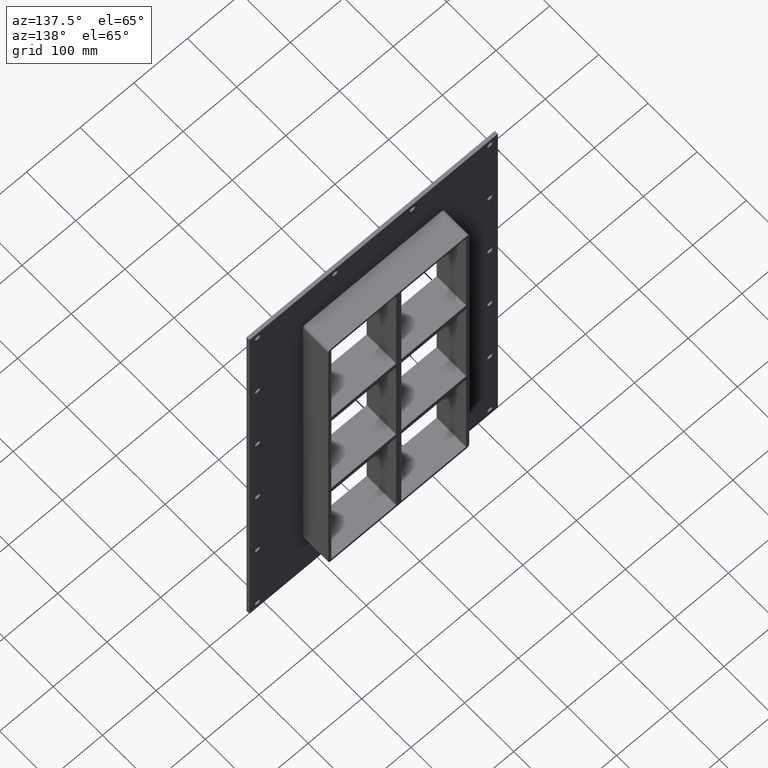
[diagram: clean part render]
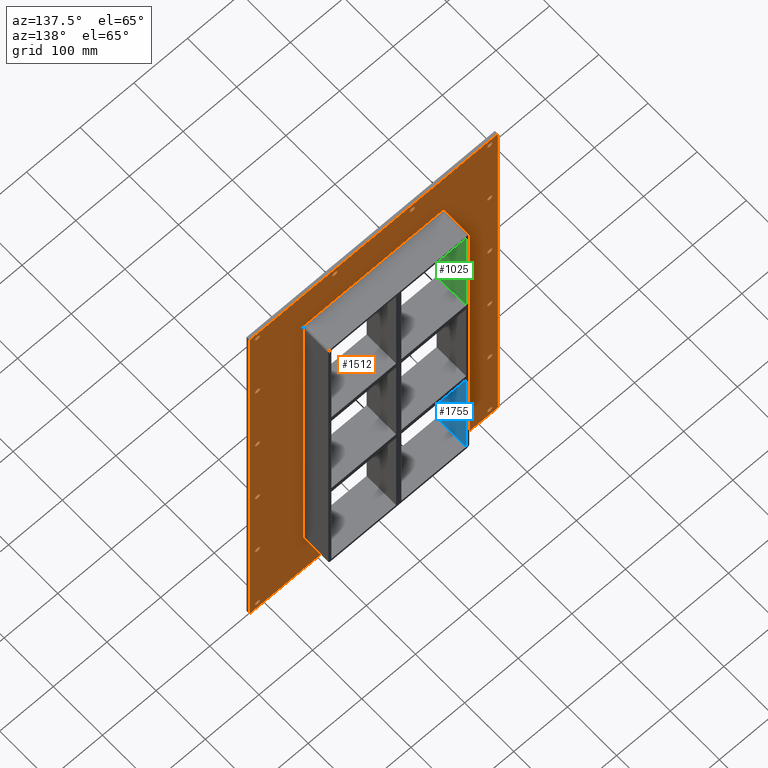
[diagram: same view with three faces highlighted in distinct colors, each labeled with its STEP entity id]
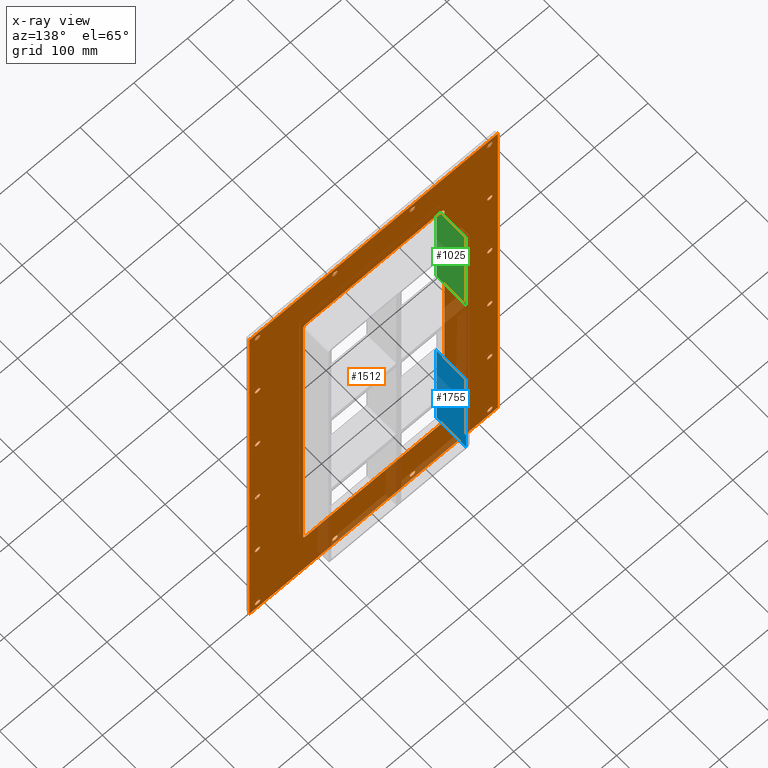
[diagram: x-ray of the same camera — body ghosted, the three highlighted faces saturated]
A machine part, auxiliary view with three faces highlighted in distinct colors.
The next image is the same camera in x-ray (body ghosted, the three faces saturated) — at least one of them is partly hidden behind the body in this view.
Their STEP definitions:

[orange] entity #1512 — the highlighted planar face has unit normal (0, 1, 0).
#73=CARTESIAN_POINT('',(-221.50000000000006,5.999999999999943,-430.00000000000011));
#74=VERTEX_POINT('',#73);
#75=CARTESIAN_POINT('',(-216.50000000000006,5.999999999999943,-430.00000000000011));
#76=DIRECTION('',(0.0,-1.0,0.0));
#77=DIRECTION('',(1.0,0.0,0.0));
#78=AXIS2_PLACEMENT_3D('',#75,#76,#77);
#79=CIRCLE('',#78,5.0);
#80=EDGE_CURVE('',#74,#74,#79,.T.);
#101=CARTESIAN_POINT('',(211.40000000000001,5.999999999999943,-258.00000000000006));
#102=VERTEX_POINT('',#101);
#103=CARTESIAN_POINT('',(216.40000000000001,5.999999999999943,-258.00000000000006));
#104=DIRECTION('',(0.0,-1.0,0.0));
#105=DIRECTION('',(1.0,0.0,0.0));
#106=AXIS2_PLACEMENT_3D('',#103,#104,#105);
#107=CIRCLE('',#106,5.0);
#108=EDGE_CURVE('',#102,#102,#107,.T.);
#129=CARTESIAN_POINT('',(-221.50000000000006,5.999999999999943,-258.00000000000006));
#130=VERTEX_POINT('',#129);
#131=CARTESIAN_POINT('',(-216.50000000000006,5.999999999999943,-258.00000000000006));
#132=DIRECTION('',(0.0,-1.0,0.0));
#133=DIRECTION('',(1.0,0.0,0.0));
#134=AXIS2_PLACEMENT_3D('',#131,#132,#133);
#135=CIRCLE('',#134,5.0);
#136=EDGE_CURVE('',#130,#130,#135,.T.);
#157=CARTESIAN_POINT('',(211.40000000000001,5.999999999999943,-86.000000000000057));
#158=VERTEX_POINT('',#157);
#159=CARTESIAN_POINT('',(216.40000000000001,5.999999999999943,-86.000000000000057));
#160=DIRECTION('',(0.0,-1.0,0.0));
#161=DIRECTION('',(1.0,0.0,0.0));
#162=AXIS2_PLACEMENT_3D('',#159,#160,#161);
#163=CIRCLE('',#162,5.0);
#164=EDGE_CURVE('',#158,#158,#163,.T.);
#185=CARTESIAN_POINT('',(-221.50000000000006,5.999999999999943,-86.000000000000057));
#186=VERTEX_POINT('',#185);
#187=CARTESIAN_POINT('',(-216.50000000000006,5.999999999999943,-86.000000000000057));
#188=DIRECTION('',(0.0,-1.0,0.0));
#189=DIRECTION('',(1.0,0.0,0.0));
#190=AXIS2_PLACEMENT_3D('',#187,#188,#189);
#191=CIRCLE('',#190,5.0);
#192=EDGE_CURVE('',#186,#186,#191,.T.);
#213=CARTESIAN_POINT('',(211.40000000000001,5.999999999999943,85.999999999999872));
#214=VERTEX_POINT('',#213);
#215=CARTESIAN_POINT('',(216.40000000000001,5.999999999999943,85.999999999999872));
#216=DIRECTION('',(0.0,-1.0,0.0));
#217=DIRECTION('',(1.0,0.0,0.0));
#218=AXIS2_PLACEMENT_3D('',#215,#216,#217);
#219=CIRCLE('',#218,5.0);
#220=EDGE_CURVE('',#214,#214,#219,.T.);
#241=CARTESIAN_POINT('',(-221.50000000000006,5.999999999999943,85.999999999999872));
#242=VERTEX_POINT('',#241);
#243=CARTESIAN_POINT('',(-216.50000000000006,5.999999999999943,85.999999999999872));
#244=DIRECTION('',(0.0,-1.0,0.0));
#245=DIRECTION('',(1.0,0.0,0.0));
#246=AXIS2_PLACEMENT_3D('',#243,#244,#245);
#247=CIRCLE('',#246,5.0);
#248=EDGE_CURVE('',#242,#242,#247,.T.);
#269=CARTESIAN_POINT('',(211.40000000000001,5.999999999999943,257.99999999999989));
#270=VERTEX_POINT('',#269);
#271=CARTESIAN_POINT('',(216.40000000000001,5.999999999999943,257.99999999999989));
#272=DIRECTION('',(0.0,-1.0,0.0));
#273=DIRECTION('',(1.0,0.0,0.0));
#274=AXIS2_PLACEMENT_3D('',#271,#272,#273);
#275=CIRCLE('',#274,5.0);
#276=EDGE_CURVE('',#270,#270,#275,.T.);
#297=CARTESIAN_POINT('',(-221.50000000000006,5.999999999999943,257.99999999999989));
#298=VERTEX_POINT('',#297);
#299=CARTESIAN_POINT('',(-216.50000000000006,5.999999999999943,257.99999999999989));
#300=DIRECTION('',(0.0,-1.0,0.0));
#301=DIRECTION('',(1.0,0.0,0.0));
#302=AXIS2_PLACEMENT_3D('',#299,#300,#301);
#303=CIRCLE('',#302,5.0);
#304=EDGE_CURVE('',#298,#298,#303,.T.);
#325=CARTESIAN_POINT('',(-77.200000000000017,5.999999999999943,429.99999999999989));
#326=VERTEX_POINT('',#325);
#327=CARTESIAN_POINT('',(-72.200000000000017,5.999999999999943,429.99999999999989));
#328=DIRECTION('',(0.0,-1.0,0.0));
#329=DIRECTION('',(1.0,0.0,0.0));
#330=AXIS2_PLACEMENT_3D('',#327,#328,#329);
#331=CIRCLE('',#330,5.0);
#332=EDGE_CURVE('',#326,#326,#331,.T.);
#353=CARTESIAN_POINT('',(-77.200000000000017,5.999999999999943,-430.00000000000011));
#354=VERTEX_POINT('',#353);
#355=CARTESIAN_POINT('',(-72.200000000000017,5.999999999999943,-430.00000000000011));
#356=DIRECTION('',(0.0,-1.0,0.0));
#357=DIRECTION('',(1.0,0.0,0.0));
#358=AXIS2_PLACEMENT_3D('',#355,#356,#357);
#359=CIRCLE('',#358,5.0);
#360=EDGE_CURVE('',#354,#354,#359,.T.);
#381=CARTESIAN_POINT('',(67.099999999999994,5.999999999999943,429.99999999999989));
#382=VERTEX_POINT('',#381);
#383=CARTESIAN_POINT('',(72.099999999999994,5.999999999999943,429.99999999999989));
#384=DIRECTION('',(0.0,-1.0,0.0));
#385=DIRECTION('',(1.0,0.0,0.0));
#386=AXIS2_PLACEMENT_3D('',#383,#384,#385);
#387=CIRCLE('',#386,5.0);
#388=EDGE_CURVE('',#382,#382,#387,.T.);
#409=CARTESIAN_POINT('',(67.099999999999994,5.999999999999943,-430.00000000000011));
#410=VERTEX_POINT('',#409);
#411=CARTESIAN_POINT('',(72.099999999999994,5.999999999999943,-430.00000000000011));
#412=DIRECTION('',(0.0,-1.0,0.0));
#413=DIRECTION('',(1.0,0.0,0.0));
#414=AXIS2_PLACEMENT_3D('',#411,#412,#413);
#415=CIRCLE('',#414,5.0);
#416=EDGE_CURVE('',#410,#410,#415,.T.);
#437=CARTESIAN_POINT('',(211.40000000000001,5.999999999999943,-430.00000000000011));
#438=VERTEX_POINT('',#437);
#439=CARTESIAN_POINT('',(216.40000000000001,5.999999999999943,-430.00000000000011));
#440=DIRECTION('',(0.0,-1.0,0.0));
#441=DIRECTION('',(1.0,0.0,0.0));
#442=AXIS2_PLACEMENT_3D('',#439,#440,#441);
#443=CIRCLE('',#442,5.0);
#444=EDGE_CURVE('',#438,#438,#443,.T.);
#465=CARTESIAN_POINT('',(-221.50000000000006,5.999999999999943,429.99999999999989));
#466=VERTEX_POINT('',#465);
#467=CARTESIAN_POINT('',(-216.50000000000006,5.999999999999943,429.99999999999989));
#468=DIRECTION('',(0.0,-1.0,0.0));
#469=DIRECTION('',(1.0,0.0,0.0));
#470=AXIS2_PLACEMENT_3D('',#467,#468,#469);
#471=CIRCLE('',#470,5.0);
#472=EDGE_CURVE('',#466,#466,#471,.T.);
#493=CARTESIAN_POINT('',(211.40000000000001,5.999999999999943,429.99999999999989));
#494=VERTEX_POINT('',#493);
#495=CARTESIAN_POINT('',(216.40000000000001,5.999999999999943,429.99999999999989));
#496=DIRECTION('',(0.0,-1.0,0.0));
#497=DIRECTION('',(1.0,0.0,0.0));
#498=AXIS2_PLACEMENT_3D('',#495,#496,#497);
#499=CIRCLE('',#498,5.0);
#500=EDGE_CURVE('',#494,#494,#499,.T.);
#1355=CARTESIAN_POINT('',(0.0,6.000000000000001,-2.520772E-014));
#1356=DIRECTION('',(0.0,1.0,0.0));
#1357=DIRECTION('',(0.0,0.0,1.0));
#1358=AXIS2_PLACEMENT_3D('',#1355,#1356,#1357);
#1359=PLANE('',#1358);
#1360=CARTESIAN_POINT('',(-231.5,6.000000000000001,445.00000000000006));
#1361=VERTEX_POINT('',#1360);
#1362=CARTESIAN_POINT('',(231.5,6.000000000000001,445.00000000000006));
#1363=VERTEX_POINT('',#1362);
#1364=CARTESIAN_POINT('',(-231.5,6.000000000000001,445.00000000000006));
#1365=DIRECTION('',(1.0,0.0,0.0));
#1366=VECTOR('',#1365,463.0);
#1367=LINE('',#1364,#1366);
#1368=EDGE_CURVE('',#1361,#1363,#1367,.T.);
#1369=ORIENTED_EDGE('',*,*,#1368,.T.);
#1370=CARTESIAN_POINT('',(231.5,6.000000000000001,-445.00000000000023));
#1371=VERTEX_POINT('',#1370);
#1372=CARTESIAN_POINT('',(231.5,6.000000000000001,445.00000000000006));
#1373=DIRECTION('',(0.0,0.0,-1.0));
#1374=VECTOR('',#1373,890.00000000000023);
#1375=LINE('',#1372,#1374);
#1376=EDGE_CURVE('',#1363,#1371,#1375,.T.);
#1377=ORIENTED_EDGE('',*,*,#1376,.T.);
#1378=CARTESIAN_POINT('',(-231.5,6.000000000000001,-445.00000000000023));
#1379=VERTEX_POINT('',#1378);
#1380=CARTESIAN_POINT('',(231.5,6.000000000000001,-445.00000000000011));
#1381=DIRECTION('',(-1.0,0.0,0.0));
#1382=VECTOR('',#1381,463.0);
#1383=LINE('',#1380,#1382);
#1384=EDGE_CURVE('',#1371,#1379,#1383,.T.);
#1385=ORIENTED_EDGE('',*,*,#1384,.T.);
#1386=CARTESIAN_POINT('',(-231.5,6.000000000000001,-445.00000000000011));
#1387=DIRECTION('',(0.0,0.0,1.0));
#1388=VECTOR('',#1387,890.00000000000023);
#1389=LINE('',#1386,#1388);
#1390=EDGE_CURVE('',#1379,#1361,#1389,.T.);
#1391=ORIENTED_EDGE('',*,*,#1390,.T.);
#1392=EDGE_LOOP('',(#1369,#1377,#1385,#1391));
#1393=FACE_OUTER_BOUND('',#1392,.T.);
#1394=ORIENTED_EDGE('',*,*,#80,.T.);
#1395=EDGE_LOOP('',(#1394));
#1396=FACE_BOUND('',#1395,.T.);
#1397=ORIENTED_EDGE('',*,*,#108,.T.);
#1398=EDGE_LOOP('',(#1397));
#1399=FACE_BOUND('',#1398,.T.);
#1400=ORIENTED_EDGE('',*,*,#136,.T.);
#1401=EDGE_LOOP('',(#1400));
#1402=FACE_BOUND('',#1401,.T.);
#1403=ORIENTED_EDGE('',*,*,#164,.T.);
#1404=EDGE_LOOP('',(#1403));
#1405=FACE_BOUND('',#1404,.T.);
#1406=ORIENTED_EDGE('',*,*,#192,.T.);
#1407=EDGE_LOOP('',(#1406));
#1408=FACE_BOUND('',#1407,.T.);
#1409=ORIENTED_EDGE('',*,*,#220,.T.);
#1410=EDGE_LOOP('',(#1409));
#1411=FACE_BOUND('',#1410,.T.);
#1412=ORIENTED_EDGE('',*,*,#248,.T.);
#1413=EDGE_LOOP('',(#1412));
#1414=FACE_BOUND('',#1413,.T.);
#1415=ORIENTED_EDGE('',*,*,#276,.T.);
#1416=EDGE_LOOP('',(#1415));
#1417=FACE_BOUND('',#1416,.T.);
#1418=ORIENTED_EDGE('',*,*,#304,.T.);
#1419=EDGE_LOOP('',(#1418));
#1420=FACE_BOUND('',#1419,.T.);
#1421=ORIENTED_EDGE('',*,*,#332,.T.);
#1422=EDGE_LOOP('',(#1421));
#1423=FACE_BOUND('',#1422,.T.);
#1424=ORIENTED_EDGE('',*,*,#360,.T.);
#1425=EDGE_LOOP('',(#1424));
#1426=FACE_BOUND('',#1425,.T.);
#1427=ORIENTED_EDGE('',*,*,#388,.T.);
#1428=EDGE_LOOP('',(#1427));
#1429=FACE_BOUND('',#1428,.T.);
#1430=ORIENTED_EDGE('',*,*,#416,.T.);
#1431=EDGE_LOOP('',(#1430));
#1432=FACE_BOUND('',#1431,.T.);
#1433=ORIENTED_EDGE('',*,*,#444,.T.);
#1434=EDGE_LOOP('',(#1433));
#1435=FACE_BOUND('',#1434,.T.);
#1436=ORIENTED_EDGE('',*,*,#472,.T.);
#1437=EDGE_LOOP('',(#1436));
#1438=FACE_BOUND('',#1437,.T.);
#1439=ORIENTED_EDGE('',*,*,#500,.T.);
#1440=EDGE_LOOP('',(#1439));
#1441=FACE_BOUND('',#1440,.T.);
#1442=CARTESIAN_POINT('',(-125.5,6.000000000000001,-345.00000000000011));
#1443=VERTEX_POINT('',#1442);
#1444=CARTESIAN_POINT('',(-131.5,6.000000000000001,-339.00000000000023));
#1445=VERTEX_POINT('',#1444);
#1446=CARTESIAN_POINT('',(-125.5,6.000000000000001,-339.00000000000023));
#1447=DIRECTION('',(0.0,1.0,0.0));
#1448=DIRECTION('',(-0.707106781186552,0.0,-0.707106781186543));
#1449=AXIS2_PLACEMENT_3D('',#1446,#1447,#1448);
#1450=CIRCLE('',#1449,6.000000000000001);
#1451=EDGE_CURVE('',#1443,#1445,#1450,.T.);
#1452=ORIENTED_EDGE('',*,*,#1451,.F.);
#1453=CARTESIAN_POINT('',(125.5,6.000000000000001,-345.00000000000011));
#1454=VERTEX_POINT('',#1453);
#1455=CARTESIAN_POINT('',(125.5,6.000000000000001,-345.00000000000011));
#1456=DIRECTION('',(-1.0,0.0,0.0));
#1457=VECTOR('',#1456,251.0);
#1458=LINE('',#1455,#1457);
#1459=EDGE_CURVE('',#1454,#1443,#1458,.T.);
#1460=ORIENTED_EDGE('',*,*,#1459,.F.);
#1461=CARTESIAN_POINT('',(131.5,6.000000000000001,-339.00000000000006));
#1462=VERTEX_POINT('',#1461);
#1463=CARTESIAN_POINT('',(125.5,6.000000000000001,-339.00000000000006));
#1464=DIRECTION('',(0.0,1.0,0.0));
#1465=DIRECTION('',(0.707106781186543,0.0,-0.707106781186552));
#1466=AXIS2_PLACEMENT_3D('',#1463,#1464,#1465);
#1467=CIRCLE('',#1466,6.0);
#1468=EDGE_CURVE('',#1462,#1454,#1467,.T.);
#1469=ORIENTED_EDGE('',*,*,#1468,.F.);
#1470=CARTESIAN_POINT('',(131.5,6.000000000000001,339.0));
#1471=VERTEX_POINT('',#1470);
#1472=CARTESIAN_POINT('',(131.5,6.000000000000001,339.0));
#1473=DIRECTION('',(0.0,0.0,-1.0));
#1474=VECTOR('',#1473,678.0);
#1475=LINE('',#1472,#1474);
#1476=EDGE_CURVE('',#1471,#1462,#1475,.T.);
#1477=ORIENTED_EDGE('',*,*,#1476,.F.);
#1478=CARTESIAN_POINT('',(125.5,6.000000000000001,345.0));
#1479=VERTEX_POINT('',#1478);
#1480=CARTESIAN_POINT('',(125.5,6.000000000000001,339.0));
#1481=DIRECTION('',(0.0,1.0,0.0));
#1482=DIRECTION('',(0.707106781186543,0.0,0.707106781186552));
#1483=AXIS2_PLACEMENT_3D('',#1480,#1481,#1482);
#1484=CIRCLE('',#1483,6.0);
#1485=EDGE_CURVE('',#1479,#1471,#1484,.T.);
#1486=ORIENTED_EDGE('',*,*,#1485,.F.);
#1487=CARTESIAN_POINT('',(-125.5,6.000000000000001,345.0));
#1488=VERTEX_POINT('',#1487);
#1489=CARTESIAN_POINT('',(-125.5,6.000000000000001,345.0));
#1490=DIRECTION('',(1.0,0.0,0.0));
#1491=VECTOR('',#1490,251.0);
#1492=LINE('',#1489,#1491);
#1493=EDGE_CURVE('',#1488,#1479,#1492,.T.);
#1494=ORIENTED_EDGE('',*,*,#1493,.F.);
#1495=CARTESIAN_POINT('',(-131.5,6.000000000000001,338.99999999999989));
#1496=VERTEX_POINT('',#1495);
#1497=CARTESIAN_POINT('',(-125.5,6.000000000000001,338.99999999999989));
#1498=DIRECTION('',(0.0,1.0,0.0));
#1499=DIRECTION('',(-0.707106781186543,0.0,0.707106781186552));
#1500=AXIS2_PLACEMENT_3D('',#1497,#1498,#1499);
#1501=CIRCLE('',#1500,6.0);
#1502=EDGE_CURVE('',#1496,#1488,#1501,.T.);
#1503=ORIENTED_EDGE('',*,*,#1502,.F.);
#1504=CARTESIAN_POINT('',(-131.5,6.000000000000001,-339.00000000000017));
#1505=DIRECTION('',(0.0,0.0,1.0));
#1506=VECTOR('',#1505,678.00000000000011);
#1507=LINE('',#1504,#1506);
#1508=EDGE_CURVE('',#1445,#1496,#1507,.T.);
#1509=ORIENTED_EDGE('',*,*,#1508,.F.);
#1510=EDGE_LOOP('',(#1452,#1460,#1469,#1477,#1486,#1494,#1503,#1509));
#1511=FACE_BOUND('',#1510,.T.);
#1512=ADVANCED_FACE('',(#1393,#1396,#1399,#1402,#1405,#1408,#1411,#1414,#1417,#1420,#1423,#1426,#1429,#1432,#1435,#1438,#1441,#1511),#1359,.T.);

[blue] entity #1755 — the highlighted planar face has unit normal (-1, 0, 0).
#917=CARTESIAN_POINT('',(-125.49999999999969,-3.0,-121.00000000000932));
#918=VERTEX_POINT('',#917);
#925=CARTESIAN_POINT('',(-125.49999999999969,57.0,-121.00000000000932));
#926=VERTEX_POINT('',#925);
#927=CARTESIAN_POINT('',(-125.49999999999999,57.000000000000007,-121.00000000000929));
#928=DIRECTION('',(0.0,-1.0,0.0));
#929=VECTOR('',#928,60.000000000000007);
#930=LINE('',#927,#929);
#931=EDGE_CURVE('',#926,#918,#930,.T.);
#1171=CARTESIAN_POINT('',(-125.5,57.0,-339.00000000000006));
#1172=VERTEX_POINT('',#1171);
#1173=CARTESIAN_POINT('',(-125.49999999999999,57.0,-121.00000000000932));
#1174=DIRECTION('',(0.0,0.0,-1.0));
#1175=VECTOR('',#1174,217.99999999999073);
#1176=LINE('',#1173,#1175);
#1177=EDGE_CURVE('',#926,#1172,#1176,.T.);
#1287=CARTESIAN_POINT('',(-125.5,-3.0,-339.00000000000006));
#1288=VERTEX_POINT('',#1287);
#1289=CARTESIAN_POINT('',(-125.49999999999999,-3.0,-339.00000000000006));
#1290=DIRECTION('',(0.0,1.0,0.0));
#1291=VECTOR('',#1290,60.0);
#1292=LINE('',#1289,#1291);
#1293=EDGE_CURVE('',#1288,#1172,#1292,.T.);
#1739=CARTESIAN_POINT('',(-125.49999999999999,0.0,-339.00000000000006));
#1740=DIRECTION('',(-1.0,0.0,0.0));
#1741=DIRECTION('',(0.0,0.0,1.0));
#1742=AXIS2_PLACEMENT_3D('',#1739,#1740,#1741);
#1743=PLANE('',#1742);
#1744=ORIENTED_EDGE('',*,*,#931,.T.);
#1745=CARTESIAN_POINT('',(-125.49999999999999,-3.0,-339.00000000000006));
#1746=DIRECTION('',(0.0,0.0,1.0));
#1747=VECTOR('',#1746,217.99999999999073);
#1748=LINE('',#1745,#1747);
#1749=EDGE_CURVE('',#1288,#918,#1748,.T.);
#1750=ORIENTED_EDGE('',*,*,#1749,.F.);
#1751=ORIENTED_EDGE('',*,*,#1293,.T.);
#1752=ORIENTED_EDGE('',*,*,#1177,.F.);
#1753=EDGE_LOOP('',(#1744,#1750,#1751,#1752));
#1754=FACE_OUTER_BOUND('',#1753,.T.);
#1755=ADVANCED_FACE('',(#1754),#1743,.F.);

[green] entity #1025 — the highlighted planar face has unit normal (-1, 0, 0).
#611=CARTESIAN_POINT('',(-125.4999999999997,57.0,120.99999999999994));
#612=VERTEX_POINT('',#611);
#619=CARTESIAN_POINT('',(-125.4999999999997,-3.0,120.99999999999994));
#620=VERTEX_POINT('',#619);
#621=CARTESIAN_POINT('',(-125.49999999999999,-3.0,120.99999999999994));
#622=DIRECTION('',(0.0,1.0,0.0));
#623=VECTOR('',#622,60.000000000000007);
#624=LINE('',#621,#623);
#625=EDGE_CURVE('',#620,#612,#624,.T.);
#995=CARTESIAN_POINT('',(-125.49999999999999,0.0,-339.00000000000006));
#996=DIRECTION('',(-1.0,0.0,0.0));
#997=DIRECTION('',(0.0,0.0,1.0));
#998=AXIS2_PLACEMENT_3D('',#995,#996,#997);
#999=PLANE('',#998);
#1000=ORIENTED_EDGE('',*,*,#625,.T.);
#1001=CARTESIAN_POINT('',(-125.5,57.0,339.00000000000006));
#1002=VERTEX_POINT('',#1001);
#1003=CARTESIAN_POINT('',(-125.49999999999999,57.0,339.00000000000006));
#1004=DIRECTION('',(0.0,0.0,-1.0));
#1005=VECTOR('',#1004,218.00000000000011);
#1006=LINE('',#1003,#1005);
#1007=EDGE_CURVE('',#1002,#612,#1006,.T.);
#1008=ORIENTED_EDGE('',*,*,#1007,.F.);
#1009=CARTESIAN_POINT('',(-125.5,-3.0,339.00000000000006));
#1010=VERTEX_POINT('',#1009);
#1011=CARTESIAN_POINT('',(-125.49999999999999,-3.0,339.00000000000006));
#1012=DIRECTION('',(0.0,1.0,0.0));
#1013=VECTOR('',#1012,60.0);
#1014=LINE('',#1011,#1013);
#1015=EDGE_CURVE('',#1010,#1002,#1014,.T.);
#1016=ORIENTED_EDGE('',*,*,#1015,.F.);
#1017=CARTESIAN_POINT('',(-125.49999999999999,-3.0,120.99999999999994));
#1018=DIRECTION('',(0.0,0.0,1.0));
#1019=VECTOR('',#1018,218.00000000000011);
#1020=LINE('',#1017,#1019);
#1021=EDGE_CURVE('',#620,#1010,#1020,.T.);
#1022=ORIENTED_EDGE('',*,*,#1021,.F.);
#1023=EDGE_LOOP('',(#1000,#1008,#1016,#1022));
#1024=FACE_OUTER_BOUND('',#1023,.T.);
#1025=ADVANCED_FACE('',(#1024),#999,.F.);